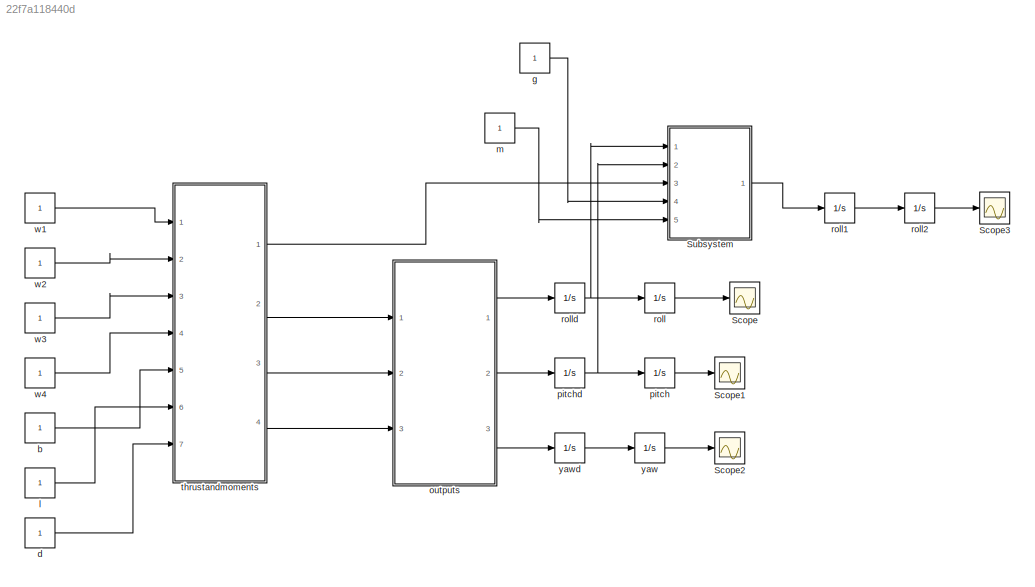
MODEL slx_22f7a118440d
KIND model
CONFIG AbsTol = auto
CONFIG FixedStep = auto
CONFIG MaxStep = auto
CONFIG MinStep = auto
CONFIG RelTol = 1e-3
CONFIG SampleTimeConstraint = Unconstrained
CONFIG Solver = ode45
CONFIG SolverMode = Auto
CONFIG SolverName = ode45
CONFIG StartTime = 0.0
CONFIG StopTime = 10.0
BLOCK [Scope] Scope
  Floating = off
  NumInputPorts = 1
  Ports = [1]
BLOCK [Scope] Scope1
  Floating = off
  NumInputPorts = 1
  Ports = [1]
  SaveName = ScopeData1
BLOCK [Scope] Scope2
  Floating = off
  NumInputPorts = 1
  Ports = [1]
  SaveName = ScopeData2
BLOCK [Scope] Scope3
  Floating = off
  NumInputPorts = 1
  Ports = [1]
  SaveName = ScopeData3
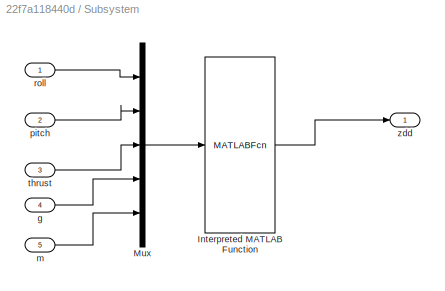
BLOCK [SubSystem] Subsystem
  Ports = [5, 1]
  RequestExecContextInheritance = off
BLOCK [MATLABFcn] Subsystem/Interpreted MATLAB Function 
  MATLABFcn = height
  Output1D = off
  OutputDimensions = 1
  Ports = [1, 1]
BLOCK [Mux] Subsystem/Mux
  DisplayOption = bar
  Inputs = 5
  Ports = [5, 1]
BLOCK [Inport] Subsystem/g
  IconDisplay = Port number
  Port = 4
BLOCK [Inport] Subsystem/m
  IconDisplay = Port number
  Port = 5
BLOCK [Inport] Subsystem/pitch
  IconDisplay = Port number
  Port = 2
BLOCK [Inport] Subsystem/roll
  IconDisplay = Port number
BLOCK [Inport] Subsystem/thrust
  IconDisplay = Port number
  Port = 3
BLOCK [Outport] Subsystem/zdd
  IconDisplay = Port number
BLOCK [Constant] b
BLOCK [Constant] d
BLOCK [Constant] g
BLOCK [Constant] l
BLOCK [Constant] m
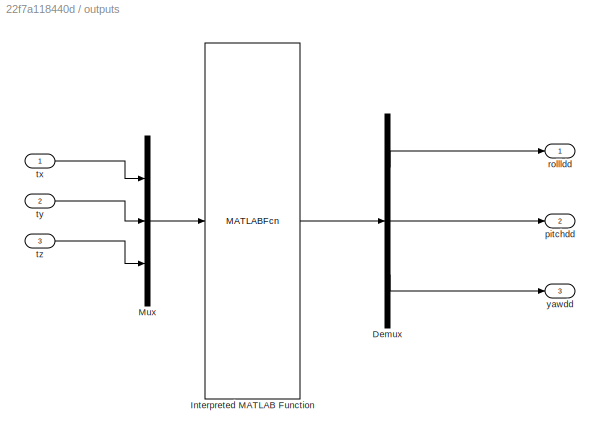
BLOCK [SubSystem] outputs
  Ports = [3, 3]
  RequestExecContextInheritance = off
BLOCK [Demux] outputs/Demux
  DisplayOption = bar
  Outputs = 3
  Ports = [1, 3]
BLOCK [MATLABFcn] outputs/Interpreted MATLAB Function
  MATLABFcn = output
  Output1D = off
  OutputDimensions = 3
  Ports = [1, 1]
BLOCK [Mux] outputs/Mux
  DisplayOption = bar
  Inputs = 3
  Ports = [3, 1]
BLOCK [Outport] outputs/pitchdd
  IconDisplay = Port number
  Port = 2
BLOCK [Outport] outputs/rollldd
  IconDisplay = Port number
BLOCK [Inport] outputs/tx 
  IconDisplay = Port number
BLOCK [Inport] outputs/ty 
  IconDisplay = Port number
  Port = 2
BLOCK [Inport] outputs/tz 
  IconDisplay = Port number
  Port = 3
BLOCK [Outport] outputs/yawdd
  IconDisplay = Port number
  Port = 3
BLOCK [Integrator] pitch
  Ports = [1, 1]
BLOCK [Integrator] pitchd
  Ports = [1, 1]
BLOCK [Integrator] roll
  Ports = [1, 1]
BLOCK [Integrator] roll1
  Ports = [1, 1]
BLOCK [Integrator] roll2
  Ports = [1, 1]
BLOCK [Integrator] rolld
  Ports = [1, 1]
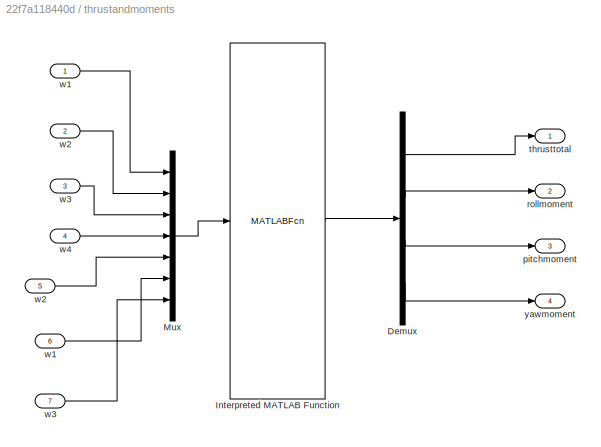
BLOCK [SubSystem] thrustandmoments
  Ports = [7, 4]
  RequestExecContextInheritance = off
BLOCK [Demux] thrustandmoments/Demux
  DisplayOption = bar
  Ports = [1, 4]
BLOCK [MATLABFcn] thrustandmoments/Interpreted MATLAB Function
  MATLABFcn = thrust
  Ports = [1, 1]
BLOCK [Mux] thrustandmoments/Mux
  DisplayOption = bar
  Inputs = 7
  Ports = [7, 1]
BLOCK [Outport] thrustandmoments/pitchmoment
  IconDisplay = Port number
  Port = 3
BLOCK [Outport] thrustandmoments/rollmoment
  IconDisplay = Port number
  Port = 2
BLOCK [Outport] thrustandmoments/thrusttotal
  IconDisplay = Port number
BLOCK [Inport] thrustandmoments/w1
  IconDisplay = Port number
  Port = 6
BLOCK [Inport] thrustandmoments/w1 
  IconDisplay = Port number
BLOCK [Inport] thrustandmoments/w2
  IconDisplay = Port number
  Port = 5
BLOCK [Inport] thrustandmoments/w2 
  IconDisplay = Port number
  Port = 2
BLOCK [Inport] thrustandmoments/w3
  IconDisplay = Port number
  Port = 7
BLOCK [Inport] thrustandmoments/w3 
  IconDisplay = Port number
  Port = 3
BLOCK [Inport] thrustandmoments/w4
  IconDisplay = Port number
  Port = 4
BLOCK [Outport] thrustandmoments/yawmoment
  IconDisplay = Port number
  Port = 4
BLOCK [Constant] w1
BLOCK [Constant] w2
BLOCK [Constant] w3
BLOCK [Constant] w4
BLOCK [Integrator] yaw
  Ports = [1, 1]
BLOCK [Integrator] yawd
  Ports = [1, 1]
LINE Subsystem/Interpreted MATLAB Function :1 -> Subsystem/zdd:1
LINE Subsystem/Mux:1 -> Subsystem/Interpreted MATLAB Function :1
LINE Subsystem/g:1 -> Subsystem/Mux:4
LINE Subsystem/m:1 -> Subsystem/Mux:5
LINE Subsystem/pitch:1 -> Subsystem/Mux:2
LINE Subsystem/roll:1 -> Subsystem/Mux:1
LINE Subsystem/thrust:1 -> Subsystem/Mux:3
LINE Subsystem:1 -> roll1:1
LINE b:1 -> thrustandmoments:5
LINE d:1 -> thrustandmoments:7
LINE g:1 -> Subsystem:4
LINE l:1 -> thrustandmoments:6
LINE m:1 -> Subsystem:5
LINE outputs/Demux:1 -> outputs/rollldd:1
LINE outputs/Demux:2 -> outputs/pitchdd:1
LINE outputs/Demux:3 -> outputs/yawdd:1
LINE outputs/Interpreted MATLAB Function:1 -> outputs/Demux:1
LINE outputs/Mux:1 -> outputs/Interpreted MATLAB Function:1
LINE outputs/tx :1 -> outputs/Mux:1
LINE outputs/ty :1 -> outputs/Mux:2
LINE outputs/tz :1 -> outputs/Mux:3
LINE outputs:1 -> rolld:1
LINE outputs:2 -> pitchd:1
LINE outputs:3 -> yawd:1
LINE pitch:1 -> Scope1:1
NET pitchd:1 -> Subsystem:2, pitch:1
LINE roll1:1 -> roll2:1
LINE roll2:1 -> Scope3:1
LINE roll:1 -> Scope:1
NET rolld:1 -> Subsystem:1, roll:1
LINE thrustandmoments/Demux:1 -> thrustandmoments/thrusttotal:1
LINE thrustandmoments/Demux:2 -> thrustandmoments/rollmoment:1
LINE thrustandmoments/Demux:3 -> thrustandmoments/pitchmoment:1
LINE thrustandmoments/Demux:4 -> thrustandmoments/yawmoment:1
LINE thrustandmoments/Interpreted MATLAB Function:1 -> thrustandmoments/Demux:1
LINE thrustandmoments/Mux:1 -> thrustandmoments/Interpreted MATLAB Function:1
LINE thrustandmoments/w1 :1 -> thrustandmoments/Mux:1
LINE thrustandmoments/w1:1 -> thrustandmoments/Mux:6
LINE thrustandmoments/w2 :1 -> thrustandmoments/Mux:2
LINE thrustandmoments/w2:1 -> thrustandmoments/Mux:5
LINE thrustandmoments/w3 :1 -> thrustandmoments/Mux:3
LINE thrustandmoments/w3:1 -> thrustandmoments/Mux:7
LINE thrustandmoments/w4:1 -> thrustandmoments/Mux:4
LINE thrustandmoments:1 -> Subsystem:3
LINE thrustandmoments:2 -> outputs:1
LINE thrustandmoments:3 -> outputs:2
LINE thrustandmoments:4 -> outputs:3
LINE w1:1 -> thrustandmoments:1
LINE w2:1 -> thrustandmoments:2
LINE w3:1 -> thrustandmoments:3
LINE w4:1 -> thrustandmoments:4
LINE yaw:1 -> Scope2:1
LINE yawd:1 -> yaw:1
note: NET lines group one-source signal fan-out (src -> all destinations, sorted); 1:1 wires keep LINE
